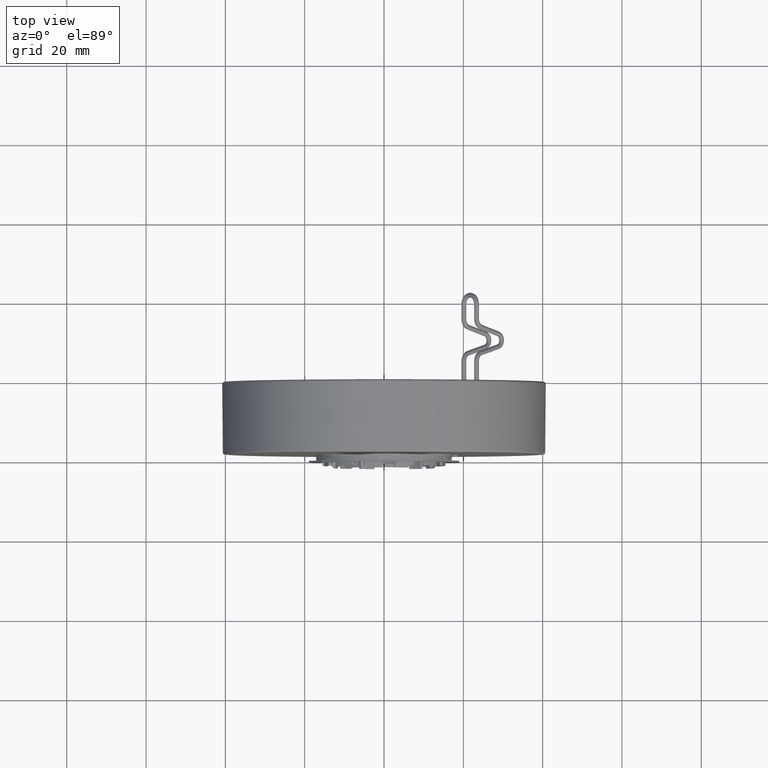
[diagram: clean part render]
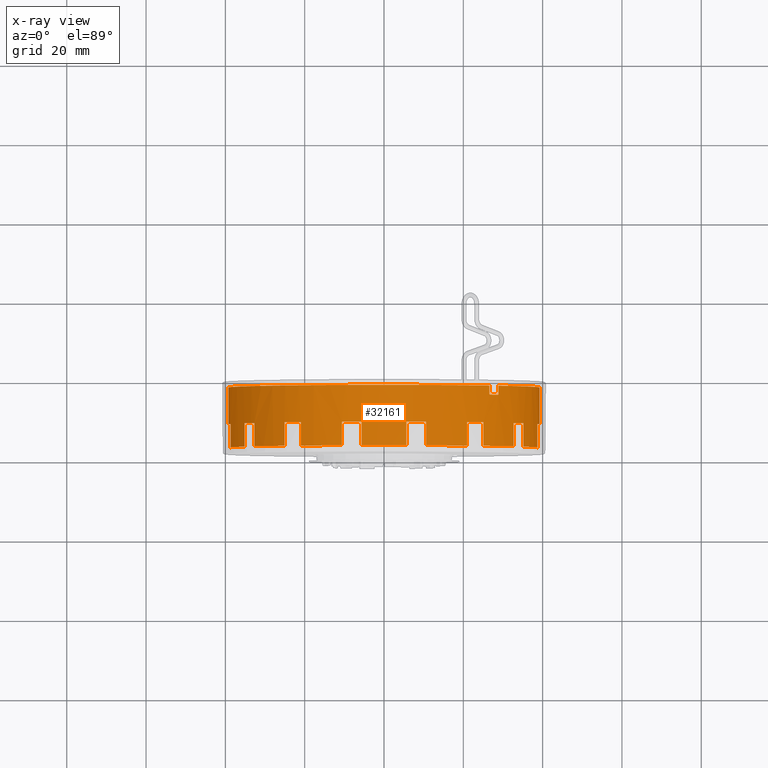
[diagram: x-ray — body ghosted, one internal face saturated and labeled with its STEP entity id]
A machine part, top view, then the same camera in x-ray: the body is ghosted and one INTERNAL B-rep face — a face not visible from any outside direction — is saturated and labeled: STEP entity #32161.
In plain terms, the highlighted cylindrical surface (partial cylindrical patch) has radius 39.243 mm, axis along (0, -1, 0).
Its self-contained STEP definition (entity closure, byte-faithful):
#2299=CARTESIAN_POINT('',(0.E0,6.64E-1,0.E0));
#2300=DIRECTION('',(0.E0,-1.E0,0.E0));
#2301=DIRECTION('',(1.E0,0.E0,0.E0));
#2302=AXIS2_PLACEMENT_3D('',#2299,#2300,#2301);
#2304=CARTESIAN_POINT('',(1.136990526515E0,6.64E-1,1.046077216373E0));
#2305=CARTESIAN_POINT('',(1.136832651962E0,6.373042449008E-1,1.046248811614E0));
#2306=CARTESIAN_POINT('',(1.136674740051E0,6.106084897825E-1,1.046420369497E0));
#2307=CARTESIAN_POINT('',(1.136516790784E0,5.839127346450E-1,1.046591890025E0));
#2309=CARTESIAN_POINT('',(1.046591890025E0,5.839127346450E-1,1.136516790784E0));
#2310=CARTESIAN_POINT('',(1.046420369497E0,6.106084897825E-1,1.136674740051E0));
#2311=CARTESIAN_POINT('',(1.046248811614E0,6.373042449008E-1,1.136832651962E0));
#2312=CARTESIAN_POINT('',(1.046077216373E0,6.64E-1,1.136990526515E0));
#2314=CARTESIAN_POINT('',(0.E0,6.64E-1,0.E0));
#2315=DIRECTION('',(0.E0,-1.E0,0.E0));
#2316=DIRECTION('',(6.770726319569E-1,0.E0,7.359161983915E-1));
#2317=AXIS2_PLACEMENT_3D('',#2314,#2315,#2316);
#2319=CARTESIAN_POINT('',(0.E0,6.484251968504E-2,0.E0));
#2320=DIRECTION('',(0.E0,-1.E0,0.E0));
#2321=DIRECTION('',(-9.992021225144E-1,0.E0,3.993893291977E-2));
#2322=AXIS2_PLACEMENT_3D('',#2319,#2320,#2321);
#2324=CARTESIAN_POINT('',(0.E0,6.484251968504E-2,0.E0));
#2325=DIRECTION('',(0.E0,-1.E0,0.E0));
#2326=DIRECTION('',(-8.965719327860E-1,0.E0,4.428981478177E-1));
#2327=AXIS2_PLACEMENT_3D('',#2324,#2325,#2326);
#2329=CARTESIAN_POINT('',(0.E0,6.484251968504E-2,0.E0));
#2330=DIRECTION('',(0.E0,-1.E0,0.E0));
#2331=DIRECTION('',(-6.389163107787E-1,0.E0,7.692762493545E-1));
#2332=AXIS2_PLACEMENT_3D('',#2329,#2330,#2331);
#2334=CARTESIAN_POINT('',(0.E0,6.484251968504E-2,0.E0));
#2335=DIRECTION('',(0.E0,-1.E0,0.E0));
#2336=DIRECTION('',(-2.707862542652E-1,0.E0,9.626394987227E-1));
#2337=AXIS2_PLACEMENT_3D('',#2334,#2335,#2336);
#2339=CARTESIAN_POINT('',(0.E0,6.484251968504E-2,0.E0));
#2340=DIRECTION('',(0.E0,-1.E0,0.E0));
#2341=DIRECTION('',(1.441652056266E-1,0.E0,9.895536334563E-1));
#2342=AXIS2_PLACEMENT_3D('',#2339,#2340,#2341);
#2344=CARTESIAN_POINT('',(0.E0,6.484251968504E-2,0.E0));
#2345=DIRECTION('',(0.E0,-1.E0,0.E0));
#2346=DIRECTION('',(5.341891917657E-1,0.E0,8.453649551529E-1));
#2347=AXIS2_PLACEMENT_3D('',#2344,#2345,#2346);
#2349=CARTESIAN_POINT('',(0.E0,6.484251968504E-2,0.E0));
#2350=DIRECTION('',(0.E0,-1.E0,0.E0));
#2351=DIRECTION('',(8.318470136922E-1,0.E0,5.550049962040E-1));
#2352=AXIS2_PLACEMENT_3D('',#2349,#2350,#2351);
#2354=CARTESIAN_POINT('',(0.E0,6.484251968504E-2,0.E0));
#2355=DIRECTION('',(0.E0,-1.E0,0.E0));
#2356=DIRECTION('',(9.856709298584E-1,0.E0,1.686796313493E-1));
#2357=AXIS2_PLACEMENT_3D('',#2354,#2355,#2356);
#2359=CARTESIAN_POINT('',(0.E0,6.484251968504E-2,0.E0));
#2360=DIRECTION('',(0.E0,-1.E0,0.E0));
#2361=DIRECTION('',(1.E0,0.E0,0.E0));
#2362=AXIS2_PLACEMENT_3D('',#2359,#2360,#2361);
#2501=CARTESIAN_POINT('',(1.046591890025E0,5.839127346450E-1,1.136516790784E0));
#2502=CARTESIAN_POINT('',(1.046594676197E0,5.834790899381E-1,1.136514225063E0));
#2503=CARTESIAN_POINT('',(1.046641844463E0,5.826122669406E-1,1.136470790972E0));
#2504=CARTESIAN_POINT('',(1.046836186505E0,5.813354165662E-1,1.136291792310E0));
#2505=CARTESIAN_POINT('',(1.047150805674E0,5.801035019533E-1,1.136001881448E0));
#2506=CARTESIAN_POINT('',(1.047580322276E0,5.789373605049E-1,1.135605834838E0));
#2507=CARTESIAN_POINT('',(1.048117409102E0,5.778566844846E-1,1.135110174920E0));
#2508=CARTESIAN_POINT('',(1.048752906846E0,5.768797671360E-1,1.134523083252E0));
#2509=CARTESIAN_POINT('',(1.049475930868E0,5.760232301056E-1,1.133854324861E0));
#2510=CARTESIAN_POINT('',(1.050274082866E0,5.753016533548E-1,1.133115077414E0));
#2511=CARTESIAN_POINT('',(1.051133724450E0,5.747272881916E-1,1.132317702661E0));
#2512=CARTESIAN_POINT('',(1.052040187653E0,5.743098998021E-1,1.131475574177E0));
#2513=CARTESIAN_POINT('',(1.052977995258E0,5.740566032278E-1,1.130602892740E0));
#2514=CARTESIAN_POINT('',(1.053613423248E0,5.74E-1,1.130010594196E0));
#2515=CARTESIAN_POINT('',(1.053931009027E0,5.74E-1,1.129714312652E0));
#2530=CARTESIAN_POINT('',(0.E0,5.74E-1,0.E0));
#2531=DIRECTION('',(0.E0,-1.E0,0.E0));
#2532=DIRECTION('',(7.312066748558E-1,0.E0,6.821559928978E-1));
#2533=AXIS2_PLACEMENT_3D('',#2530,#2531,#2532);
#2535=CARTESIAN_POINT('',(1.129714312652E0,5.74E-1,1.053931009027E0));
#2536=CARTESIAN_POINT('',(1.130010594196E0,5.74E-1,1.053613423248E0));
#2537=CARTESIAN_POINT('',(1.130602892740E0,5.740566032278E-1,1.052977995258E0));
#2538=CARTESIAN_POINT('',(1.131475574177E0,5.743098998021E-1,1.052040187653E0));
#2539=CARTESIAN_POINT('',(1.132317702661E0,5.747272881916E-1,1.051133724450E0));
#2540=CARTESIAN_POINT('',(1.133115077414E0,5.753016533548E-1,1.050274082866E0));
#2541=CARTESIAN_POINT('',(1.133854324861E0,5.760232301056E-1,1.049475930868E0));
#2542=CARTESIAN_POINT('',(1.134523083252E0,5.768797671360E-1,1.048752906846E0));
#2543=CARTESIAN_POINT('',(1.135110174920E0,5.778566844846E-1,1.048117409102E0));
#2544=CARTESIAN_POINT('',(1.135605834838E0,5.789373605049E-1,1.047580322276E0));
#2545=CARTESIAN_POINT('',(1.136001881448E0,5.801035019533E-1,1.047150805674E0));
#2546=CARTESIAN_POINT('',(1.136291792310E0,5.813354165662E-1,1.046836186505E0));
#2547=CARTESIAN_POINT('',(1.136470790972E0,5.826122669406E-1,1.046641844463E0));
#2548=CARTESIAN_POINT('',(1.136514225063E0,5.834790899381E-1,1.046594676197E0));
#2549=CARTESIAN_POINT('',(1.136516790784E0,5.839127346450E-1,1.046591890025E0));
#2566=DIRECTION('',(0.E0,-1.E0,0.E0));
#2567=VECTOR('',#2566,5.991574803150E-1);
#2568=CARTESIAN_POINT('',(1.545E0,6.64E-1,0.E0));
#2569=LINE('',#2568,#2567);
#2620=DIRECTION('',(0.E0,-1.E0,0.E0));
#2621=VECTOR('',#2620,5.991574803150E-1);
#2622=CARTESIAN_POINT('',(-1.545E0,6.64E-1,0.E0));
#2623=LINE('',#2622,#2621);
#2629=CARTESIAN_POINT('',(1.543767279285E0,6.484251968504E-2,
6.170565136104E-2));
#2645=DIRECTION('',(0.E0,1.E0,0.E0));
#2646=VECTOR('',#2645,2.331574803150E-1);
#2647=CARTESIAN_POINT('',(1.543767279285E0,6.484251968504E-2,
6.170565136104E-2));
#2648=LINE('',#2647,#2646);
#2665=CARTESIAN_POINT('',(1.522861586631E0,2.98E-1,2.606100304347E-1));
#2698=CARTESIAN_POINT('',(1.543767279285E0,2.98E-1,6.170565136104E-2));
#2700=CARTESIAN_POINT('',(0.E0,2.98E-1,0.E0));
#2701=DIRECTION('',(0.E0,1.E0,0.E0));
#2702=DIRECTION('',(9.856709298584E-1,0.E0,1.686796313493E-1));
#2703=AXIS2_PLACEMENT_3D('',#2700,#2701,#2702);
#2719=CARTESIAN_POINT('',(1.522861586631E0,6.484251968504E-2,
2.606100304347E-1));
#2737=DIRECTION('',(0.E0,-1.E0,0.E0));
#2738=VECTOR('',#2737,2.331574803150E-1);
#2739=CARTESIAN_POINT('',(1.522861586631E0,2.98E-1,2.606100304347E-1));
#2740=LINE('',#2739,#2738);
#2741=CARTESIAN_POINT('',(1.385203636154E0,6.484251968504E-2,
6.842776383783E-1));
#2757=DIRECTION('',(0.E0,1.E0,0.E0));
#2758=VECTOR('',#2757,2.331574803150E-1);
#2759=CARTESIAN_POINT('',(1.385203636154E0,6.484251968504E-2,
6.842776383783E-1));
#2760=LINE('',#2759,#2758);
#2777=CARTESIAN_POINT('',(1.285203636154E0,2.98E-1,8.574827191352E-1));
#2810=CARTESIAN_POINT('',(1.385203636154E0,2.98E-1,6.842776383783E-1));
#2812=CARTESIAN_POINT('',(0.E0,2.98E-1,0.E0));
#2813=DIRECTION('',(0.E0,1.E0,0.E0));
#2814=DIRECTION('',(8.318470136922E-1,0.E0,5.550049962040E-1));
#2815=AXIS2_PLACEMENT_3D('',#2812,#2813,#2814);
#2831=CARTESIAN_POINT('',(1.285203636154E0,6.484251968504E-2,
8.574827191352E-1));
#2849=DIRECTION('',(0.E0,-1.E0,0.E0));
#2850=VECTOR('',#2849,2.331574803150E-1);
#2851=CARTESIAN_POINT('',(1.285203636154E0,2.98E-1,8.574827191352E-1));
#2852=LINE('',#2851,#2850);
#2853=CARTESIAN_POINT('',(9.871257001531E-1,6.484251968504E-2,
1.188531805253E0));
#2869=DIRECTION('',(0.E0,1.E0,0.E0));
#2870=VECTOR('',#2869,2.331574803150E-1);
#2871=CARTESIAN_POINT('',(9.871257001531E-1,6.484251968504E-2,
1.188531805253E0));
#2872=LINE('',#2871,#2870);
#2889=CARTESIAN_POINT('',(8.253223012781E-1,2.98E-1,1.306088855711E0));
#2922=CARTESIAN_POINT('',(9.871257001531E-1,2.98E-1,1.188531805253E0));
#2924=CARTESIAN_POINT('',(0.E0,2.98E-1,0.E0));
#2925=DIRECTION('',(0.E0,1.E0,0.E0));
#2926=DIRECTION('',(5.341891917657E-1,0.E0,8.453649551529E-1));
#2927=AXIS2_PLACEMENT_3D('',#2924,#2925,#2926);
#2943=CARTESIAN_POINT('',(8.253223012781E-1,6.484251968504E-2,
1.306088855711E0));
#2961=DIRECTION('',(0.E0,-1.E0,0.E0));
#2962=VECTOR('',#2961,2.331574803150E-1);
#2963=CARTESIAN_POINT('',(8.253223012781E-1,2.98E-1,1.306088855711E0));
#2964=LINE('',#2963,#2962);
#2965=CARTESIAN_POINT('',(4.183647628398E-1,6.484251968504E-2,
1.487278025526E0));
#2981=DIRECTION('',(0.E0,1.E0,0.E0));
#2982=VECTOR('',#2981,2.331574803150E-1);
#2983=CARTESIAN_POINT('',(4.183647628398E-1,6.484251968504E-2,
1.487278025526E0));
#2984=LINE('',#2983,#2982);
#3001=CARTESIAN_POINT('',(2.227352426930E-1,2.98E-1,1.528860363690E0));
#3034=CARTESIAN_POINT('',(4.183647628398E-1,2.98E-1,1.487278025526E0));
#3036=CARTESIAN_POINT('',(0.E0,2.98E-1,0.E0));
#3037=DIRECTION('',(0.E0,1.E0,0.E0));
#3038=DIRECTION('',(1.441652056266E-1,0.E0,9.895536334563E-1));
#3039=AXIS2_PLACEMENT_3D('',#3036,#3037,#3038);
#3055=CARTESIAN_POINT('',(2.227352426930E-1,6.484251968504E-2,
1.528860363690E0));
#3073=DIRECTION('',(0.E0,-1.E0,0.E0));
#3074=VECTOR('',#3073,2.331574803150E-1);
#3075=CARTESIAN_POINT('',(2.227352426930E-1,2.98E-1,1.528860363690E0));
#3076=LINE('',#3075,#3074);
#3077=CARTESIAN_POINT('',(-2.227352426930E-1,6.484251968504E-2,
1.528860363690E0));
#3093=DIRECTION('',(0.E0,1.E0,0.E0));
#3094=VECTOR('',#3093,2.331574803150E-1);
#3095=CARTESIAN_POINT('',(-2.227352426930E-1,6.484251968504E-2,
1.528860363690E0));
#3096=LINE('',#3095,#3094);
#3113=CARTESIAN_POINT('',(-4.183647628398E-1,2.98E-1,1.487278025526E0));
#3146=CARTESIAN_POINT('',(-2.227352426930E-1,2.98E-1,1.528860363690E0));
#3148=CARTESIAN_POINT('',(0.E0,2.98E-1,0.E0));
#3149=DIRECTION('',(0.E0,1.E0,0.E0));
#3150=DIRECTION('',(-2.707862542652E-1,0.E0,9.626394987227E-1));
#3151=AXIS2_PLACEMENT_3D('',#3148,#3149,#3150);
#3167=CARTESIAN_POINT('',(-4.183647628398E-1,6.484251968504E-2,
1.487278025526E0));
#3185=DIRECTION('',(0.E0,-1.E0,0.E0));
#3186=VECTOR('',#3185,2.331574803150E-1);
#3187=CARTESIAN_POINT('',(-4.183647628398E-1,2.98E-1,1.487278025526E0));
#3188=LINE('',#3187,#3186);
#3189=CARTESIAN_POINT('',(-8.253223012781E-1,6.484251968504E-2,
1.306088855711E0));
#3205=DIRECTION('',(0.E0,1.E0,0.E0));
#3206=VECTOR('',#3205,2.331574803150E-1);
#3207=CARTESIAN_POINT('',(-8.253223012781E-1,6.484251968504E-2,
1.306088855711E0));
#3208=LINE('',#3207,#3206);
#3225=CARTESIAN_POINT('',(-9.871257001531E-1,2.98E-1,1.188531805253E0));
#3258=CARTESIAN_POINT('',(-8.253223012781E-1,2.98E-1,1.306088855711E0));
#3260=CARTESIAN_POINT('',(0.E0,2.98E-1,0.E0));
#3261=DIRECTION('',(0.E0,1.E0,0.E0));
#3262=DIRECTION('',(-6.389163107787E-1,0.E0,7.692762493545E-1));
#3263=AXIS2_PLACEMENT_3D('',#3260,#3261,#3262);
#3279=CARTESIAN_POINT('',(-9.871257001531E-1,6.484251968504E-2,
1.188531805253E0));
#3297=DIRECTION('',(0.E0,-1.E0,0.E0));
#3298=VECTOR('',#3297,2.331574803150E-1);
#3299=CARTESIAN_POINT('',(-9.871257001531E-1,2.98E-1,1.188531805253E0));
#3300=LINE('',#3299,#3298);
#3301=CARTESIAN_POINT('',(-1.285203636154E0,6.484251968504E-2,
8.574827191352E-1));
#3317=DIRECTION('',(0.E0,1.E0,0.E0));
#3318=VECTOR('',#3317,2.331574803150E-1);
#3319=CARTESIAN_POINT('',(-1.285203636154E0,6.484251968504E-2,
8.574827191352E-1));
#3320=LINE('',#3319,#3318);
#3337=CARTESIAN_POINT('',(-1.385203636154E0,2.98E-1,6.842776383783E-1));
#3370=CARTESIAN_POINT('',(-1.285203636154E0,2.98E-1,8.574827191352E-1));
#3372=CARTESIAN_POINT('',(0.E0,2.98E-1,0.E0));
#3373=DIRECTION('',(0.E0,1.E0,0.E0));
#3374=DIRECTION('',(-8.965719327860E-1,0.E0,4.428981478177E-1));
#3375=AXIS2_PLACEMENT_3D('',#3372,#3373,#3374);
#3391=CARTESIAN_POINT('',(-1.385203636154E0,6.484251968504E-2,
6.842776383783E-1));
#3409=DIRECTION('',(0.E0,-1.E0,0.E0));
#3410=VECTOR('',#3409,2.331574803150E-1);
#3411=CARTESIAN_POINT('',(-1.385203636154E0,2.98E-1,6.842776383783E-1));
#3412=LINE('',#3411,#3410);
#3413=CARTESIAN_POINT('',(-1.522861586631E0,6.484251968504E-2,
2.606100304347E-1));
#3429=DIRECTION('',(0.E0,1.E0,0.E0));
#3430=VECTOR('',#3429,2.331574803150E-1);
#3431=CARTESIAN_POINT('',(-1.522861586631E0,6.484251968504E-2,
2.606100304347E-1));
#3432=LINE('',#3431,#3430);
#3449=CARTESIAN_POINT('',(-1.543767279285E0,2.98E-1,6.170565136104E-2));
#3482=CARTESIAN_POINT('',(-1.522861586631E0,2.98E-1,2.606100304347E-1));
#3484=CARTESIAN_POINT('',(0.E0,2.98E-1,0.E0));
#3485=DIRECTION('',(0.E0,1.E0,0.E0));
#3486=DIRECTION('',(-9.992021225144E-1,0.E0,3.993893291977E-2));
#3487=AXIS2_PLACEMENT_3D('',#3484,#3485,#3486);
#3503=CARTESIAN_POINT('',(-1.543767279285E0,6.484251968504E-2,
6.170565136104E-2));
#3521=DIRECTION('',(0.E0,-1.E0,0.E0));
#3522=VECTOR('',#3521,2.331574803150E-1);
#3523=CARTESIAN_POINT('',(-1.543767279285E0,2.98E-1,6.170565136104E-2));
#3524=LINE('',#3523,#3522);
#24405=VERTEX_POINT('',#3449);
#24408=VERTEX_POINT('',#3482);
#24433=VERTEX_POINT('',#3337);
#24436=VERTEX_POINT('',#3370);
#24461=VERTEX_POINT('',#3225);
#24464=VERTEX_POINT('',#3258);
#24489=VERTEX_POINT('',#3113);
#24492=VERTEX_POINT('',#3146);
#24517=VERTEX_POINT('',#3001);
#24520=VERTEX_POINT('',#3034);
#24545=VERTEX_POINT('',#2889);
#24548=VERTEX_POINT('',#2922);
#24573=VERTEX_POINT('',#2777);
#24576=VERTEX_POINT('',#2810);
#24601=VERTEX_POINT('',#2665);
#24604=VERTEX_POINT('',#2698);
#25300=CARTESIAN_POINT('',(-1.545E0,6.484251968504E-2,0.E0));
#25301=VERTEX_POINT('',#25300);
#25303=VERTEX_POINT('',#3503);
#25304=VERTEX_POINT('',#3413);
#25308=VERTEX_POINT('',#3391);
#25309=VERTEX_POINT('',#3301);
#25313=VERTEX_POINT('',#3279);
#25314=VERTEX_POINT('',#3189);
#25318=VERTEX_POINT('',#3167);
#25319=VERTEX_POINT('',#3077);
#25323=VERTEX_POINT('',#3055);
#25324=VERTEX_POINT('',#2965);
#25328=VERTEX_POINT('',#2943);
#25329=VERTEX_POINT('',#2853);
#25333=VERTEX_POINT('',#2831);
#25334=VERTEX_POINT('',#2741);
#25338=VERTEX_POINT('',#2719);
#25339=VERTEX_POINT('',#2629);
#25341=CARTESIAN_POINT('',(1.545E0,6.484251968504E-2,0.E0));
#25342=VERTEX_POINT('',#25341);
#26102=CARTESIAN_POINT('',(1.129714312652E0,5.74E-1,1.053931009027E0));
#26103=VERTEX_POINT('',#26102);
#26104=CARTESIAN_POINT('',(1.136516790784E0,5.839127346450E-1,
1.046591890025E0));
#26105=VERTEX_POINT('',#26104);
#26107=CARTESIAN_POINT('',(1.053931009027E0,5.74E-1,1.129714312652E0));
#26109=VERTEX_POINT('',#26107);
#26111=CARTESIAN_POINT('',(1.046591890025E0,5.839127346450E-1,
1.136516790784E0));
#26112=VERTEX_POINT('',#26111);
#27752=CARTESIAN_POINT('',(1.545E0,6.64E-1,0.E0));
#27753=CARTESIAN_POINT('',(1.136990526515E0,6.64E-1,1.046077216373E0));
#27754=VERTEX_POINT('',#27752);
#27755=VERTEX_POINT('',#27753);
#27756=CARTESIAN_POINT('',(1.046077216373E0,6.64E-1,1.136990526515E0));
#27757=CARTESIAN_POINT('',(-1.545E0,6.64E-1,0.E0));
#27758=VERTEX_POINT('',#27756);
#27759=VERTEX_POINT('',#27757);
#32072=CARTESIAN_POINT('',(0.E0,7.8945E-1,0.E0));
#32073=DIRECTION('',(0.E0,-1.E0,0.E0));
#32074=DIRECTION('',(-1.E0,0.E0,0.E0));
#32075=AXIS2_PLACEMENT_3D('',#32072,#32073,#32074);
#32076=CYLINDRICAL_SURFACE('',#32075,1.545E0);
#32077=ORIENTED_EDGE('',*,*,#32046,.T.);
#32079=ORIENTED_EDGE('',*,*,#32078,.T.);
#32081=ORIENTED_EDGE('',*,*,#32080,.F.);
#32083=ORIENTED_EDGE('',*,*,#32082,.T.);
#32085=ORIENTED_EDGE('',*,*,#32084,.F.);
#32087=ORIENTED_EDGE('',*,*,#32086,.T.);
#32088=ORIENTED_EDGE('',*,*,#32050,.T.);
#32090=ORIENTED_EDGE('',*,*,#32089,.T.);
#32092=ORIENTED_EDGE('',*,*,#32091,.F.);
#32094=ORIENTED_EDGE('',*,*,#32093,.F.);
#32096=ORIENTED_EDGE('',*,*,#32095,.T.);
#32098=ORIENTED_EDGE('',*,*,#32097,.F.);
#32100=ORIENTED_EDGE('',*,*,#32099,.F.);
#32102=ORIENTED_EDGE('',*,*,#32101,.F.);
#32104=ORIENTED_EDGE('',*,*,#32103,.T.);
#32106=ORIENTED_EDGE('',*,*,#32105,.F.);
#32108=ORIENTED_EDGE('',*,*,#32107,.F.);
#32110=ORIENTED_EDGE('',*,*,#32109,.F.);
#32112=ORIENTED_EDGE('',*,*,#32111,.T.);
#32114=ORIENTED_EDGE('',*,*,#32113,.F.);
#32116=ORIENTED_EDGE('',*,*,#32115,.F.);
#32118=ORIENTED_EDGE('',*,*,#32117,.F.);
#32120=ORIENTED_EDGE('',*,*,#32119,.T.);
#32122=ORIENTED_EDGE('',*,*,#32121,.F.);
#32124=ORIENTED_EDGE('',*,*,#32123,.F.);
#32126=ORIENTED_EDGE('',*,*,#32125,.F.);
#32128=ORIENTED_EDGE('',*,*,#32127,.T.);
#32130=ORIENTED_EDGE('',*,*,#32129,.F.);
#32132=ORIENTED_EDGE('',*,*,#32131,.F.);
#32134=ORIENTED_EDGE('',*,*,#32133,.F.);
#32136=ORIENTED_EDGE('',*,*,#32135,.T.);
#32138=ORIENTED_EDGE('',*,*,#32137,.F.);
#32140=ORIENTED_EDGE('',*,*,#32139,.F.);
#32142=ORIENTED_EDGE('',*,*,#32141,.F.);
#32144=ORIENTED_EDGE('',*,*,#32143,.T.);
#32146=ORIENTED_EDGE('',*,*,#32145,.F.);
#32148=ORIENTED_EDGE('',*,*,#32147,.F.);
#32150=ORIENTED_EDGE('',*,*,#32149,.F.);
#32152=ORIENTED_EDGE('',*,*,#32151,.T.);
#32154=ORIENTED_EDGE('',*,*,#32153,.F.);
#32156=ORIENTED_EDGE('',*,*,#32155,.F.);
#32158=ORIENTED_EDGE('',*,*,#32157,.F.);
#32159=EDGE_LOOP('',(#32077,#32079,#32081,#32083,#32085,#32087,#32088,#32090,
#32092,#32094,#32096,#32098,#32100,#32102,#32104,#32106,#32108,#32110,#32112,
#32114,#32116,#32118,#32120,#32122,#32124,#32126,#32128,#32130,#32132,#32134,
#32136,#32138,#32140,#32142,#32144,#32146,#32148,#32150,#32152,#32154,#32156,
#32158));
#32160=FACE_OUTER_BOUND('',#32159,.F.);
#32161=ADVANCED_FACE('',(#32160),#32076,.F.);
#2303=CIRCLE('',#2302,1.545E0);
#2308=B_SPLINE_CURVE_WITH_KNOTS('',3,(#2304,#2305,#2306,#2307),.UNSPECIFIED.,
.F.,.F.,(4,4),(0.E0,1.E0),.UNSPECIFIED.);
#2313=B_SPLINE_CURVE_WITH_KNOTS('',3,(#2309,#2310,#2311,#2312),.UNSPECIFIED.,
.F.,.F.,(4,4),(0.E0,1.E0),.UNSPECIFIED.);
#2318=CIRCLE('',#2317,1.545E0);
#2323=CIRCLE('',#2322,1.545E0);
#2328=CIRCLE('',#2327,1.545E0);
#2333=CIRCLE('',#2332,1.545E0);
#2338=CIRCLE('',#2337,1.545E0);
#2343=CIRCLE('',#2342,1.545E0);
#2348=CIRCLE('',#2347,1.545E0);
#2353=CIRCLE('',#2352,1.545E0);
#2358=CIRCLE('',#2357,1.545E0);
#2363=CIRCLE('',#2362,1.545E0);
#2516=B_SPLINE_CURVE_WITH_KNOTS('',3,(#2501,#2502,#2503,#2504,#2505,#2506,#2507,
#2508,#2509,#2510,#2511,#2512,#2513,#2514,#2515),.UNSPECIFIED.,.F.,.F.,(4,1,1,1,
1,1,1,1,1,1,1,1,4),(0.E0,8.333333333333E-2,1.666666666667E-1,2.5E-1,
3.333333333333E-1,4.166666666667E-1,5.E-1,5.833333333333E-1,6.666666666667E-1,
7.5E-1,8.333333333333E-1,9.166666666667E-1,1.E0),.UNSPECIFIED.);
#2534=CIRCLE('',#2533,1.545E0);
#2550=B_SPLINE_CURVE_WITH_KNOTS('',3,(#2535,#2536,#2537,#2538,#2539,#2540,#2541,
#2542,#2543,#2544,#2545,#2546,#2547,#2548,#2549),.UNSPECIFIED.,.F.,.F.,(4,1,1,1,
1,1,1,1,1,1,1,1,4),(0.E0,8.333333333333E-2,1.666666666667E-1,2.5E-1,
3.333333333333E-1,4.166666666667E-1,5.E-1,5.833333333333E-1,6.666666666667E-1,
7.5E-1,8.333333333333E-1,9.166666666667E-1,1.E0),.UNSPECIFIED.);
#2704=CIRCLE('',#2703,1.545E0);
#2816=CIRCLE('',#2815,1.545E0);
#2928=CIRCLE('',#2927,1.545E0);
#3040=CIRCLE('',#3039,1.545E0);
#3152=CIRCLE('',#3151,1.545E0);
#3264=CIRCLE('',#3263,1.545E0);
#3376=CIRCLE('',#3375,1.545E0);
#3488=CIRCLE('',#3487,1.545E0);
#32046=EDGE_CURVE('',#27754,#27755,#2303,.T.);
#32050=EDGE_CURVE('',#27758,#27759,#2318,.T.);
#32078=EDGE_CURVE('',#27755,#26105,#2308,.T.);
#32080=EDGE_CURVE('',#26103,#26105,#2550,.T.);
#32082=EDGE_CURVE('',#26103,#26109,#2534,.T.);
#32084=EDGE_CURVE('',#26112,#26109,#2516,.T.);
#32086=EDGE_CURVE('',#26112,#27758,#2313,.T.);
#32089=EDGE_CURVE('',#27759,#25301,#2623,.T.);
#32091=EDGE_CURVE('',#25303,#25301,#2323,.T.);
#32093=EDGE_CURVE('',#24405,#25303,#3524,.T.);
#32095=EDGE_CURVE('',#24405,#24408,#3488,.T.);
#32097=EDGE_CURVE('',#25304,#24408,#3432,.T.);
#32099=EDGE_CURVE('',#25308,#25304,#2328,.T.);
#32101=EDGE_CURVE('',#24433,#25308,#3412,.T.);
#32103=EDGE_CURVE('',#24433,#24436,#3376,.T.);
#32105=EDGE_CURVE('',#25309,#24436,#3320,.T.);
#32107=EDGE_CURVE('',#25313,#25309,#2333,.T.);
#32109=EDGE_CURVE('',#24461,#25313,#3300,.T.);
#32111=EDGE_CURVE('',#24461,#24464,#3264,.T.);
#32113=EDGE_CURVE('',#25314,#24464,#3208,.T.);
#32115=EDGE_CURVE('',#25318,#25314,#2338,.T.);
#32117=EDGE_CURVE('',#24489,#25318,#3188,.T.);
#32119=EDGE_CURVE('',#24489,#24492,#3152,.T.);
#32121=EDGE_CURVE('',#25319,#24492,#3096,.T.);
#32123=EDGE_CURVE('',#25323,#25319,#2343,.T.);
#32125=EDGE_CURVE('',#24517,#25323,#3076,.T.);
#32127=EDGE_CURVE('',#24517,#24520,#3040,.T.);
#32129=EDGE_CURVE('',#25324,#24520,#2984,.T.);
#32131=EDGE_CURVE('',#25328,#25324,#2348,.T.);
#32133=EDGE_CURVE('',#24545,#25328,#2964,.T.);
#32135=EDGE_CURVE('',#24545,#24548,#2928,.T.);
#32137=EDGE_CURVE('',#25329,#24548,#2872,.T.);
#32139=EDGE_CURVE('',#25333,#25329,#2353,.T.);
#32141=EDGE_CURVE('',#24573,#25333,#2852,.T.);
#32143=EDGE_CURVE('',#24573,#24576,#2816,.T.);
#32145=EDGE_CURVE('',#25334,#24576,#2760,.T.);
#32147=EDGE_CURVE('',#25338,#25334,#2358,.T.);
#32149=EDGE_CURVE('',#24601,#25338,#2740,.T.);
#32151=EDGE_CURVE('',#24601,#24604,#2704,.T.);
#32153=EDGE_CURVE('',#25339,#24604,#2648,.T.);
#32155=EDGE_CURVE('',#25342,#25339,#2363,.T.);
#32157=EDGE_CURVE('',#27754,#25342,#2569,.T.);